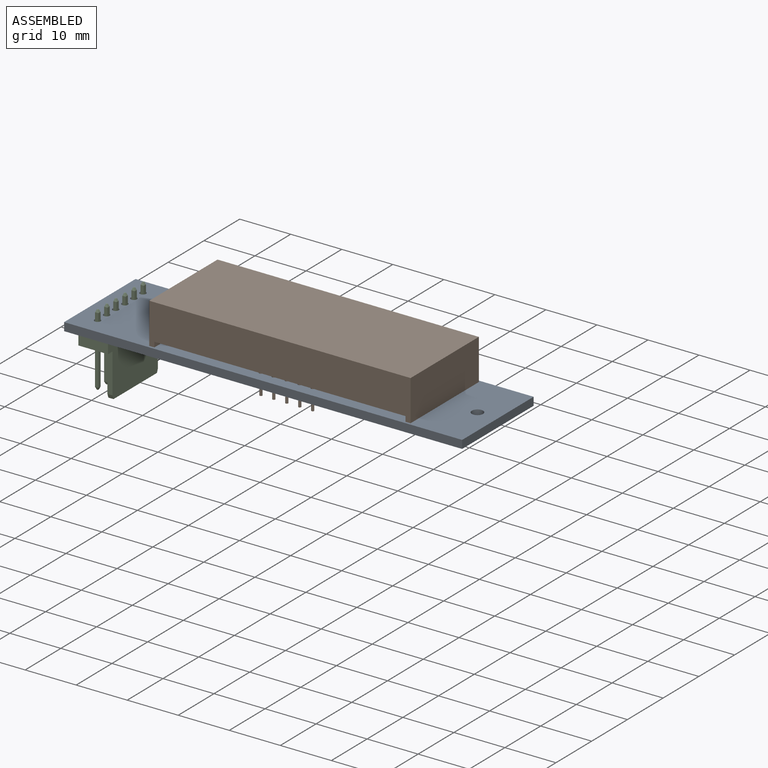
[diagram: assembled view]
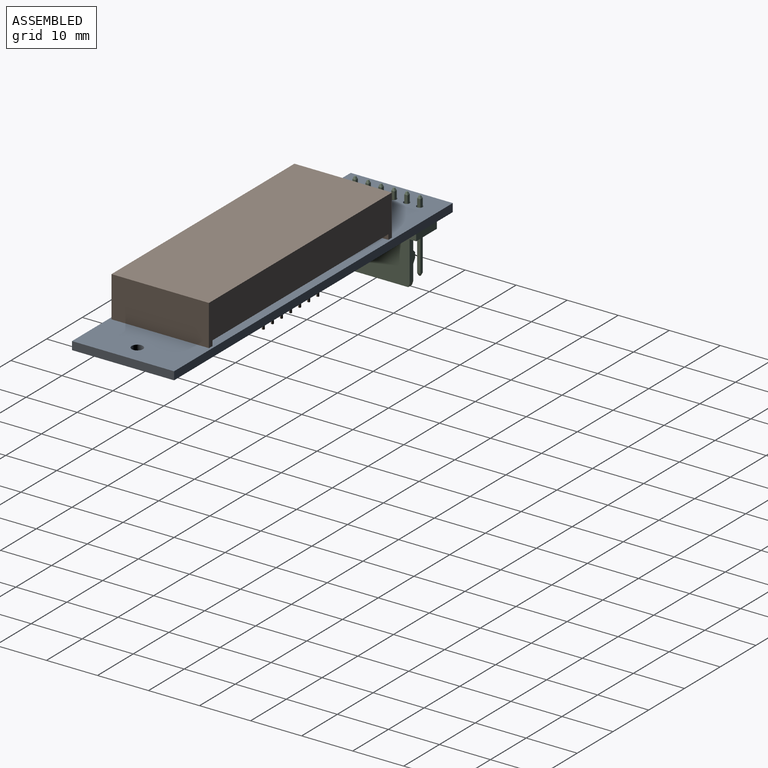
[diagram: assembled view, second angle]
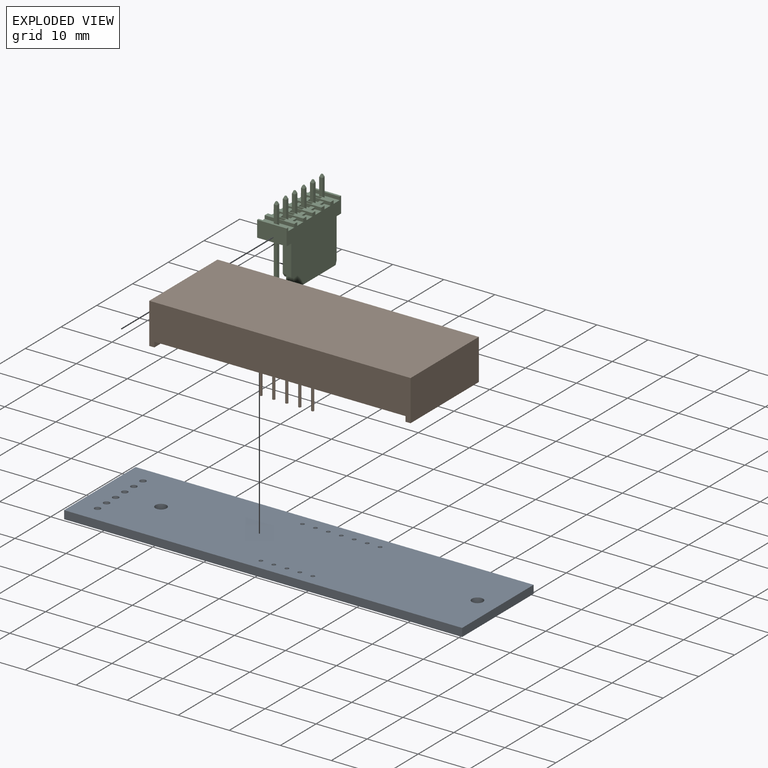
[diagram: exploded view]
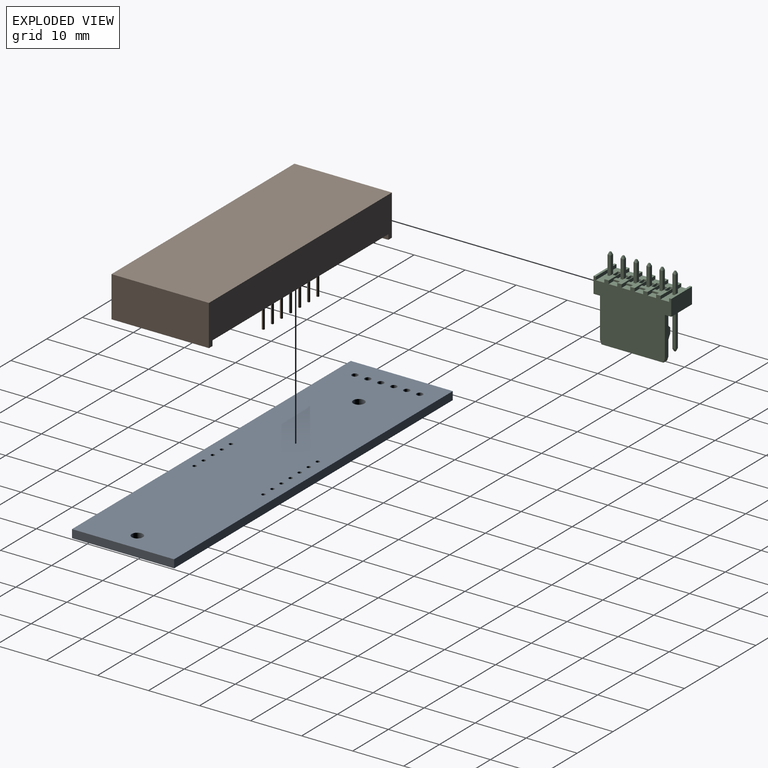
[diagram: exploded view, second angle]
ASSEMBLY  parts=3 mates=3
PART A: 26 faces, bbox 78x20x1.6 mm
  f0: plane 20x1.6mm, normal (-1,0,0), area 32mm2, adj f1,f2,f24,f25
  f1: plane 78x1.6mm, normal (0,1,0), area 124.8mm2, adj f0,f3,f24,f25
  f2: plane 78x1.6mm, normal (0,-1,0), area 124.8mm2, adj f0,f3,f24,f25
  f3: plane 20x1.6mm, normal (1,0,0), area 32mm2, adj f1,f2,f24,f25
  f4: cylinder r=0.38mm len=1.6mm, axis (0,0,1), area 3.8mm2, adj f24,f25
  f5: cylinder r=0.38mm len=1.6mm, axis (0,0,1), area 3.8mm2, adj f24,f25
  f6: cylinder r=0.38mm len=1.6mm, axis (0,0,1), area 3.8mm2, adj f24,f25
  f7: cylinder r=0.38mm len=1.6mm, axis (0,0,1), area 3.8mm2, adj f24,f25
  f8: cylinder r=0.38mm len=1.6mm, axis (0,0,1), area 3.8mm2, adj f24,f25
  f9: cylinder r=0.38mm len=1.6mm, axis (0,0,1), area 3.8mm2, adj f24,f25
  f10: cylinder r=0.38mm len=1.6mm, axis (0,0,1), area 3.8mm2, adj f24,f25
  f11: cylinder r=0.38mm len=1.6mm, axis (0,0,1), area 3.8mm2, adj f24,f25
  f12: cylinder r=0.38mm len=1.6mm, axis (0,0,1), area 3.8mm2, adj f24,f25
  f13: cylinder r=1.1mm len=2.2mm, axis (0,0,1), area 11.1mm2, adj f24,f25
  f14: cylinder r=0.6mm len=1.6mm, axis (0,0,1), area 6mm2, adj f24,f25
  f15: cylinder r=0.6mm len=1.6mm, axis (0,0,1), area 6mm2, adj f24,f25
  f16: cylinder r=0.6mm len=1.6mm, axis (0,0,1), area 6mm2, adj f24,f25
  f17: cylinder r=0.6mm len=1.6mm, axis (0,0,1), area 6mm2, adj f24,f25
  f18: cylinder r=0.6mm len=1.6mm, axis (0,0,1), area 6mm2, adj f24,f25
  f19: cylinder r=0.6mm len=1.6mm, axis (0,0,1), area 6mm2, adj f24,f25
  f20: cylinder r=0.38mm len=1.6mm, axis (0,0,1), area 3.8mm2, adj f24,f25
  f21: cylinder r=0.38mm len=1.6mm, axis (0,0,1), area 3.8mm2, adj f24,f25
  f22: cylinder r=1.1mm len=2.2mm, axis (0,0,1), area 11.1mm2, adj f24,f25
  f23: cylinder r=0.38mm len=1.6mm, axis (0,0,1), area 3.8mm2, adj f24,f25
  f24: plane 78x20mm, normal (0,0,1), area 1540.3mm2, adj f0,f1,f2,f3,f4,f5,f6,f7
  f25: plane 78x20mm, normal (0,0,-1), area 1540.3mm2, adj f0,f1,f2,f3,f4,f5,f6,f7
PART B: 34 faces, bbox 51.2x19.1x12 mm
  f0: cylinder r=0.25mm len=5mm, axis (0,0,1), area 7.9mm2, adj f1,f33
  f1: plane 49.2x19.1mm, normal (0,0,1), area 937.4mm2, adj f0,f2,f5,f7,f9,f11,f13,f15
  f2: cylinder r=0.25mm len=5mm, axis (0,0,1), area 7.9mm2, adj f1,f3
  f3: plane 0.5x0.5mm, normal (0,0,1), area 0.2mm2, adj f2
  f4: plane 0.5x0.5mm, normal (0,0,1), area 0.2mm2, adj f5
  f5: cylinder r=0.25mm len=5mm, axis (0,0,1), area 7.9mm2, adj f1,f4
  f6: plane 0.5x0.5mm, normal (0,0,1), area 0.2mm2, adj f7
  f7: cylinder r=0.25mm len=5mm, axis (0,0,1), area 7.9mm2, adj f1,f6
  f8: plane 19.1x1mm, normal (0,0,1), area 19.1mm2, adj f9,f13,f14,f15
  f9: plane 19.1x1mm, normal (-1,0,0), area 19.1mm2, adj f1,f8,f13,f15
  f10: plane 19.1x1mm, normal (0,0,1), area 19.1mm2, adj f11,f13,f15,f16
  f11: plane 19.1x1mm, normal (1,0,0), area 19.1mm2, adj f1,f10,f13,f15
  f12: plane 51.2x19.1mm, normal (0,0,-1), area 977.9mm2, adj f13,f14,f15,f16
  f13: plane 51.2x8mm, normal (0,1,0), area 360.4mm2, adj f1,f8,f9,f10,f11,f12,f14,f16
  f14: plane 19.1x8mm, normal (1,0,0), area 152.8mm2, adj f8,f12,f13,f15
  f15: plane 51.2x8mm, normal (0,-1,0), area 360.4mm2, adj f1,f8,f9,f10,f11,f12,f14,f16
  f16: plane 19.1x8mm, normal (-1,0,0), area 152.8mm2, adj f10,f12,f13,f15
  f17: cylinder r=0.25mm len=5mm, axis (0,0,1), area 7.9mm2, adj f1,f18
  f18: plane 0.5x0.5mm, normal (0,0,1), area 0.2mm2, adj f17
  f19: cylinder r=0.25mm len=5mm, axis (0,0,1), area 7.9mm2, adj f1,f20
  f20: plane 0.5x0.5mm, normal (0,0,1), area 0.2mm2, adj f19
  f21: cylinder r=0.25mm len=5mm, axis (0,0,1), area 7.9mm2, adj f1,f22
  f22: plane 0.5x0.5mm, normal (0,0,1), area 0.2mm2, adj f21
  f23: cylinder r=0.25mm len=5mm, axis (0,0,1), area 7.9mm2, adj f1,f24
  f24: plane 0.5x0.5mm, normal (0,0,1), area 0.2mm2, adj f23
  f25: cylinder r=0.25mm len=5mm, axis (0,0,1), area 7.9mm2, adj f1,f26
  f26: plane 0.5x0.5mm, normal (0,0,1), area 0.2mm2, adj f25
  f27: cylinder r=0.25mm len=5mm, axis (0,0,1), area 7.9mm2, adj f1,f28
  f28: plane 0.5x0.5mm, normal (0,0,1), area 0.2mm2, adj f27
  f29: cylinder r=0.25mm len=5mm, axis (0,0,1), area 7.9mm2, adj f1,f30
  f30: plane 0.5x0.5mm, normal (0,0,1), area 0.2mm2, adj f29
  f31: cylinder r=0.25mm len=5mm, axis (0,0,1), area 7.9mm2, adj f1,f32
  f32: plane 0.5x0.5mm, normal (0,0,1), area 0.2mm2, adj f31
  f33: plane 0.5x0.5mm, normal (0,0,1), area 0.2mm2, adj f0
PART C: 201 faces, bbox 15.2x15.3x5.8 mm
  f0: plane 3.7x0.64mm, normal (0,0,1), area 2.4mm2, adj f1,f180,f183,f188
  f1: plane 0.64x0.5mm, normal (0,-0.37,0.93), area 0.2mm2, adj f0,f19,f48,f50
  f2: plane 7x0.64mm, normal (0,0,1), area 4.5mm2, adj f47,f77,f182,f187
  f3: plane 5.8x3.16mm, normal (-1,0,0), area 18.3mm2, adj f4,f61,f69,f77
  f4: plane 15.24x3.16mm, normal (0,0,1), area 41.7mm2, adj f3,f14,f24,f31,f51,f60,f61,f62
  f5: plane 0.64x0.5mm, normal (0,-0.37,-0.93), area 0.2mm2, adj f22,f58,f59,f76
  f6: plane 3.16x1.5mm, normal (1,0,0), area 4.7mm2, adj f8,f64,f77,f191
  f7: plane 3.16x0.61mm, normal (0,0,-1), area 1.9mm2, adj f21,f63,f77,f200
  f8: plane 3.16x0.61mm, normal (0,0,-1), area 1.9mm2, adj f6,f30,f64,f77
  f9: plane 3.16x1.5mm, normal (-1,0,0), area 4.7mm2, adj f65,f77,f196,f197
  f10: plane 0.24x0.24mm, normal (0,1,0), area 0.1mm2, adj f25,f47,f184,f189
  f11: plane 0.64x0.5mm, normal (-0.93,0.37,0), area 0.2mm2, adj f161,f163,f164,f170
  f12: plane 7.79x1.6mm, normal (-1,0,0), area 8.8mm2, adj f27,f40,f69,f77,f80,f81,f82,f83
  f13: plane 3.7x0.64mm, normal (0,0,1), area 2.4mm2, adj f102,f107,f111,f115
  f14: plane 5.8x1.68mm, normal (0,-1,0), area 9.3mm2, adj f4,f53,f57,f60,f69,f70,f72,f76
  f15: plane 0.24x0.24mm, normal (0,-1,0), area 0.1mm2, adj f97,f98,f99,f100
  f16: plane 3.16x0.61mm, normal (0,0,1), area 1.9mm2, adj f21,f63,f77,f200
  f17: plane 1x0.75mm, normal (0.94,0.34,0), area 0.8mm2, adj f69,f78,f79,f84
  f18: plane 3.16x0.61mm, normal (0,0,-1), area 1.9mm2, adj f44,f62,f77,f190
  f19: plane 0.24x0.24mm, normal (0,-1,0), area 0.1mm2, adj f1,f48,f49,f50
  f20: plane 7x0.64mm, normal (1,0,0), area 4.5mm2, adj f52,f56,f75,f77
  f21: plane 3.16x1.5mm, normal (1,0,0), area 4.7mm2, adj f7,f16,f63,f77
  f22: plane 0.64x0.5mm, normal (-0.93,-0.37,0), area 0.2mm2, adj f5,f59,f72,f199
  f23: plane 3.16x0.61mm, normal (0,0,1), area 1.9mm2, adj f66,f77,f193,f195
  f24: plane 5.8x0.64mm, normal (-1,0,0), area 3.2mm2, adj f4,f64,f69,f119,f124,f129,f130,f136
  f25: plane 0.64x0.5mm, normal (-0.93,0.37,0), area 0.2mm2, adj f10,f47,f182,f184
  f26: plane 0.64x0.5mm, normal (-0.93,0.37,0), area 0.2mm2, adj f29,f46,f143,f148
  f27: plane 1x0.75mm, normal (-0.94,0.34,0), area 0.8mm2, adj f12,f69,f78,f84
  f28: plane 0.24x0.24mm, normal (0,-1,0), area 0.1mm2, adj f43,f111,f112,f113
  f29: plane 0.64x0.5mm, normal (0,0.37,-0.93), area 0.2mm2, adj f26,f46,f145,f147
  f30: plane 3.16x1.5mm, normal (-1,0,0), area 4.7mm2, adj f8,f64,f77,f191
  f31: plane 5.8x1.68mm, normal (0,-1,0), area 9.3mm2, adj f4,f68,f69,f86,f91,f92,f96,f198
  f32: plane 7x0.64mm, normal (-1,0,0), area 4.5mm2, adj f77,f87,f90,f95
  f33: plane 3.7x0.64mm, normal (0,0,-1), area 2.4mm2, adj f43,f102,f107,f115
  f34: plane 0.64x0.5mm, normal (0.93,-0.37,0), area 0.2mm2, adj f146,f150,f151,f152
  f35: plane 1.68x0.33mm, normal (0,0,1), area 0.6mm2, adj f132,f157,f159,f177
  f36: plane 0.64x0.5mm, normal (-0.93,-0.37,0), area 0.2mm2, adj f162,f173,f174,f176
  f37: plane 7x0.64mm, normal (1,0,0), area 4.5mm2, adj f77,f90,f93,f95
  f38: plane 3.7x0.64mm, normal (0,0,-1), area 2.4mm2, adj f141,f144,f146,f152
  f39: plane 3.7x0.64mm, normal (0,0,1), area 2.4mm2, adj f141,f144,f146,f150
  f40: plane 12.7x1.69mm, normal (0,0,1), area 21.5mm2, adj f12,f79,f80,f81
  f41: plane 7x0.64mm, normal (1,0,0), area 4.5mm2, adj f77,f145,f147,f149
  f42: plane 0.64x0.5mm, normal (0,0.37,-0.93), area 0.2mm2, adj f103,f104,f105,f108
  f43: plane 0.64x0.5mm, normal (0,-0.37,-0.93), area 0.2mm2, adj f28,f33,f112,f113
  f44: plane 3.16x1.5mm, normal (1,0,0), area 4.7mm2, adj f18,f45,f62,f77
  f45: plane 3.16x0.61mm, normal (0,0,1), area 1.9mm2, adj f44,f62,f77,f190
  f46: plane 0.24x0.24mm, normal (0,1,0), area 0.1mm2, adj f26,f29,f147,f148
  f47: plane 0.64x0.5mm, normal (0,0.37,0.93), area 0.2mm2, adj f2,f10,f25,f189
  f48: plane 0.64x0.5mm, normal (0.93,-0.37,0), area 0.2mm2, adj f1,f19,f49,f188
  f49: plane 0.64x0.5mm, normal (0,-0.37,-0.93), area 0.2mm2, adj f19,f48,f50,f186
  f50: plane 0.64x0.5mm, normal (-0.93,-0.37,0), area 0.2mm2, adj f1,f19,f49,f183
  f51: plane 5.8x0.64mm, normal (-1,0,0), area 3.2mm2, adj f4,f66,f69,f121,f126,f133,f134,f138
  f52: plane 7x0.64mm, normal (0,0,1), area 4.5mm2, adj f20,f54,f71,f77
  f53: plane 3.7x0.64mm, normal (0,0,1), area 2.4mm2, adj f14,f57,f72,f199
  f54: plane 0.64x0.5mm, normal (0,0.37,0.93), area 0.2mm2, adj f52,f55,f56,f73
  f55: plane 0.24x0.24mm, normal (0,1,0), area 0.1mm2, adj f54,f56,f73,f74
  f56: plane 0.64x0.5mm, normal (0.93,0.37,0), area 0.2mm2, adj f20,f54,f55,f74
  f57: plane 3.7x0.64mm, normal (1,0,0), area 2.4mm2, adj f14,f53,f58,f76
  f58: plane 0.64x0.5mm, normal (0.93,-0.37,0), area 0.2mm2, adj f5,f57,f59,f199
  f59: plane 0.24x0.24mm, normal (0,-1,0), area 0.1mm2, adj f5,f22,f58,f199
  f60: plane 5.8x0.64mm, normal (1,0,0), area 3.7mm2, adj f4,f14,f66,f69
  f61: plane 5.8x0.43mm, normal (0,-1,0), area 2.5mm2, adj f3,f4,f68,f69
  f62: plane 5.8x0.86mm, normal (0,-1,0), area 4.1mm2, adj f4,f18,f44,f45,f69,f117,f190,f198
  f63: plane 5.8x0.86mm, normal (0,-1,0), area 4.1mm2, adj f4,f7,f16,f21,f69,f122,f139,f200
  f64: plane 5.8x0.86mm, normal (0,-1,0), area 4.1mm2, adj f4,f6,f8,f24,f30,f69,f157,f191
  f65: plane 5.8x0.86mm, normal (0,-1,0), area 4.1mm2, adj f4,f9,f69,f177,f178,f192,f196,f197
  f66: plane 5.8x0.86mm, normal (0,-1,0), area 4.1mm2, adj f4,f23,f51,f60,f69,f193,f194,f195
  f67: plane 5.8x0.43mm, normal (0,-1,0), area 2.5mm2, adj f4,f69,f70,f85
  f68: plane 5.8x0.64mm, normal (1,0,0), area 3.7mm2, adj f4,f31,f61,f69
  f69: plane 15.24x11.7mm, normal (0,0,-1), area 150mm2, adj f3,f12,f14,f17,f24,f27,f31,f51
  f70: plane 5.8x0.64mm, normal (-1,0,0), area 3.7mm2, adj f4,f14,f67,f69
  f71: plane 7x0.64mm, normal (-1,0,0), area 4.5mm2, adj f52,f73,f75,f77
  f72: plane 3.7x0.64mm, normal (-1,0,0), area 2.4mm2, adj f14,f22,f53,f76
  f73: plane 0.64x0.5mm, normal (-0.93,0.37,0), area 0.2mm2, adj f54,f55,f71,f74
  f74: plane 0.64x0.5mm, normal (0,0.37,-0.93), area 0.2mm2, adj f55,f56,f73,f75
  f75: plane 7x0.64mm, normal (0,0,-1), area 4.5mm2, adj f20,f71,f74,f77
  f76: plane 3.7x0.64mm, normal (0,0,-1), area 2.4mm2, adj f5,f14,f57,f72
  f77: plane 15.24x5.8mm, normal (0,1,0), area 61mm2, adj f2,f3,f4,f6,f7,f8,f9,f12
  f78: plane 12.15x1mm, normal (0,1,0), area 12.2mm2, adj f17,f27,f69,f84
  f79: plane 7.79x1.6mm, normal (1,0,0), area 8.8mm2, adj f17,f40,f69,f77,f80,f81,f82,f83
  f80: cylinder r=0.6mm len=12.7mm, axis (-1,0,0), area 12mm2, adj f12,f40,f77,f79
  f81: plane 12.7x0.53mm, normal (0,-0.71,0.71), area 9.5mm2, adj f12,f40,f79,f82
  f82: plane 12.7x1mm, normal (0,0,1), area 12.7mm2, adj f12,f79,f81,f83
  f83: plane 12.7x0.92mm, normal (0,0.5,0.87), area 13.5mm2, adj f12,f79,f82,f84
  f84: plane 12.7x3.8mm, normal (0,0,1), area 48.1mm2, adj f12,f17,f27,f78,f79,f83
  f85: plane 5.8x3.16mm, normal (1,0,0), area 18.3mm2, adj f4,f67,f69,f77
  f86: plane 3.7x0.64mm, normal (-1,0,0), area 2.4mm2, adj f31,f91,f96,f100
  f87: plane 0.64x0.5mm, normal (-0.93,0.37,0), area 0.2mm2, adj f32,f88,f89,f94
  f88: plane 0.24x0.24mm, normal (0,1,0), area 0.1mm2, adj f87,f89,f93,f94
  f89: plane 0.64x0.5mm, normal (0,0.37,-0.93), area 0.2mm2, adj f87,f88,f90,f93
  f90: plane 7x0.64mm, normal (0,0,-1), area 4.5mm2, adj f32,f37,f77,f89
  f91: plane 3.7x0.64mm, normal (0,0,-1), area 2.4mm2, adj f31,f86,f92,f99
  f92: plane 3.7x0.64mm, normal (1,0,0), area 2.4mm2, adj f31,f91,f96,f98
  f93: plane 0.64x0.5mm, normal (0.93,0.37,0), area 0.2mm2, adj f37,f88,f89,f94
  f94: plane 0.64x0.5mm, normal (0,0.37,0.93), area 0.2mm2, adj f87,f88,f93,f95
  f95: plane 7x0.64mm, normal (0,0,1), area 4.5mm2, adj f32,f37,f77,f94
  f96: plane 3.7x0.64mm, normal (0,0,1), area 2.4mm2, adj f31,f86,f92,f97
  f97: plane 0.64x0.5mm, normal (0,-0.37,0.93), area 0.2mm2, adj f15,f96,f98,f100
  f98: plane 0.64x0.5mm, normal (0.93,-0.37,0), area 0.2mm2, adj f15,f92,f97,f99
  f99: plane 0.64x0.5mm, normal (0,-0.37,-0.93), area 0.2mm2, adj f15,f91,f98,f100
  f100: plane 0.64x0.5mm, normal (-0.93,-0.37,0), area 0.2mm2, adj f15,f86,f97,f99
  f101: plane 7x0.64mm, normal (-1,0,0), area 4.5mm2, adj f77,f103,f105,f110
  f102: plane 3.7x0.64mm, normal (-1,0,0), area 2.4mm2, adj f13,f33,f113,f115
  f103: plane 0.64x0.5mm, normal (-0.93,0.37,0), area 0.2mm2, adj f42,f101,f104,f109
  f104: plane 0.24x0.24mm, normal (0,1,0), area 0.1mm2, adj f42,f103,f108,f109
  f105: plane 7x0.64mm, normal (0,0,-1), area 4.5mm2, adj f42,f77,f101,f106
  f106: plane 7x0.64mm, normal (1,0,0), area 4.5mm2, adj f77,f105,f108,f110
  f107: plane 3.7x0.64mm, normal (1,0,0), area 2.4mm2, adj f13,f33,f112,f115
  f108: plane 0.64x0.5mm, normal (0.93,0.37,0), area 0.2mm2, adj f42,f104,f106,f109
  f109: plane 0.64x0.5mm, normal (0,0.37,0.93), area 0.2mm2, adj f103,f104,f108,f110
  f110: plane 7x0.64mm, normal (0,0,1), area 4.5mm2, adj f77,f101,f106,f109
  f111: plane 0.64x0.5mm, normal (0,-0.37,0.93), area 0.2mm2, adj f13,f28,f112,f113
  f112: plane 0.64x0.5mm, normal (0.93,-0.37,0), area 0.2mm2, adj f28,f43,f107,f111
  f113: plane 0.64x0.5mm, normal (-0.93,-0.37,0), area 0.2mm2, adj f28,f43,f102,f111
  f114: plane 1.68x1.3mm, normal (0,-1,0), area 2.2mm2, adj f4,f117,f118,f122
  f115: plane 1.68x1.65mm, normal (0,-1,0), area 2.4mm2, adj f13,f33,f102,f107,f117,f122,f135,f154
  f116: plane 1.68x1.3mm, normal (0,-1,0), area 2.2mm2, adj f69,f117,f122,f123
  f117: plane 5.8x0.64mm, normal (1,0,0), area 3.2mm2, adj f4,f62,f69,f114,f115,f116,f118,f123
  f118: plane 1.68x0.33mm, normal (0,0,1), area 0.6mm2, adj f114,f117,f122,f127
  f119: plane 1.68x0.33mm, normal (0,0,1), area 0.6mm2, adj f24,f129,f139,f140
  f120: plane 1.68x0.33mm, normal (0,0,1), area 0.6mm2, adj f131,f157,f158,f177
  f121: plane 1.68x0.33mm, normal (0,0,1), area 0.6mm2, adj f51,f133,f178,f179
  f122: plane 5.8x0.64mm, normal (-1,0,0), area 3.2mm2, adj f4,f63,f69,f114,f115,f116,f118,f123
  f123: plane 1.68x0.33mm, normal (0,0,-1), area 0.6mm2, adj f116,f117,f122,f128
  f124: plane 1.68x0.33mm, normal (0,0,-1), area 0.6mm2, adj f24,f130,f139,f142
  f125: plane 1.68x0.33mm, normal (0,0,-1), area 0.6mm2, adj f132,f157,f160,f177
  f126: plane 1.68x0.33mm, normal (0,0,-1), area 0.6mm2, adj f51,f134,f178,f181
  f127: plane 1.68x0.78mm, normal (0,-1,0), area 1.3mm2, adj f117,f118,f122,f135
  f128: plane 1.68x0.78mm, normal (0,-1,0), area 1.3mm2, adj f117,f122,f123,f154
  f129: plane 1.68x0.78mm, normal (0,-1,0), area 1.3mm2, adj f24,f119,f136,f139
  f130: plane 1.68x0.78mm, normal (0,-1,0), area 1.3mm2, adj f24,f124,f139,f155
  f131: plane 1.68x0.78mm, normal (0,-1,0), area 1.3mm2, adj f120,f137,f157,f177
  f132: plane 1.68x0.78mm, normal (0,-1,0), area 1.3mm2, adj f35,f125,f157,f177
  f133: plane 1.68x0.78mm, normal (0,-1,0), area 1.3mm2, adj f51,f121,f138,f178
  f134: plane 1.68x0.78mm, normal (0,-1,0), area 1.3mm2, adj f51,f126,f156,f178
  f135: plane 1.68x0.33mm, normal (0,0,-1), area 0.6mm2, adj f115,f117,f122,f127
  f136: plane 1.68x0.33mm, normal (0,0,-1), area 0.6mm2, adj f24,f129,f139,f141
  f137: plane 1.68x0.33mm, normal (0,0,-1), area 0.6mm2, adj f131,f157,f159,f177
  f138: plane 1.68x0.33mm, normal (0,0,-1), area 0.6mm2, adj f51,f133,f178,f180
  f139: plane 5.8x0.64mm, normal (1,0,0), area 3.2mm2, adj f4,f63,f69,f119,f124,f129,f130,f136
  f140: plane 1.68x1.3mm, normal (0,-1,0), area 2.2mm2, adj f4,f24,f119,f139
  f141: plane 1.68x1.65mm, normal (0,-1,0), area 2.4mm2, adj f24,f38,f39,f136,f139,f144,f146,f155
  f142: plane 1.68x1.3mm, normal (0,-1,0), area 2.2mm2, adj f24,f69,f124,f139
  f143: plane 7x0.64mm, normal (-1,0,0), area 4.5mm2, adj f26,f77,f145,f149
  f144: plane 3.7x0.64mm, normal (-1,0,0), area 2.4mm2, adj f38,f39,f141,f153
  f145: plane 7x0.64mm, normal (0,0,-1), area 4.5mm2, adj f29,f41,f77,f143
  f146: plane 3.7x0.64mm, normal (1,0,0), area 2.4mm2, adj f34,f38,f39,f141
  f147: plane 0.64x0.5mm, normal (0.93,0.37,0), area 0.2mm2, adj f29,f41,f46,f148
  f148: plane 0.64x0.5mm, normal (0,0.37,0.93), area 0.2mm2, adj f26,f46,f147,f149
  f149: plane 7x0.64mm, normal (0,0,1), area 4.5mm2, adj f41,f77,f143,f148
  f150: plane 0.64x0.5mm, normal (0,-0.37,0.93), area 0.2mm2, adj f34,f39,f151,f153
  f151: plane 0.24x0.24mm, normal (0,-1,0), area 0.1mm2, adj f34,f150,f152,f153
  f152: plane 0.64x0.5mm, normal (0,-0.37,-0.93), area 0.2mm2, adj f34,f38,f151,f153
  f153: plane 0.64x0.5mm, normal (-0.93,-0.37,0), area 0.2mm2, adj f144,f150,f151,f152
  f154: plane 1.68x0.33mm, normal (0,0,1), area 0.6mm2, adj f115,f117,f122,f128
  f155: plane 1.68x0.33mm, normal (0,0,1), area 0.6mm2, adj f24,f130,f139,f141
  f156: plane 1.68x0.33mm, normal (0,0,1), area 0.6mm2, adj f51,f134,f178,f180
  f157: plane 5.8x0.64mm, normal (1,0,0), area 3.2mm2, adj f4,f35,f64,f69,f120,f125,f131,f132
  f158: plane 1.68x1.3mm, normal (0,-1,0), area 2.2mm2, adj f4,f120,f157,f177
  f159: plane 1.68x1.65mm, normal (0,-1,0), area 2.4mm2, adj f35,f137,f157,f162,f166,f168,f172,f177
  f160: plane 1.68x1.3mm, normal (0,-1,0), area 2.2mm2, adj f69,f125,f157,f177
  f161: plane 7x0.64mm, normal (-1,0,0), area 4.5mm2, adj f11,f77,f165,f171
  f162: plane 3.7x0.64mm, normal (-1,0,0), area 2.4mm2, adj f36,f159,f166,f172
  f163: plane 0.24x0.24mm, normal (0,1,0), area 0.1mm2, adj f11,f164,f169,f170
  f164: plane 0.64x0.5mm, normal (0,0.37,-0.93), area 0.2mm2, adj f11,f163,f165,f169
  f165: plane 7x0.64mm, normal (0,0,-1), area 4.5mm2, adj f77,f161,f164,f167
  f166: plane 3.7x0.64mm, normal (0,0,-1), area 2.4mm2, adj f159,f162,f168,f176
  f167: plane 7x0.64mm, normal (1,0,0), area 4.5mm2, adj f77,f165,f169,f171
  f168: plane 3.7x0.64mm, normal (1,0,0), area 2.4mm2, adj f159,f166,f172,f175
  f169: plane 0.64x0.5mm, normal (0.93,0.37,0), area 0.2mm2, adj f163,f164,f167,f170
  f170: plane 0.64x0.5mm, normal (0,0.37,0.93), area 0.2mm2, adj f11,f163,f169,f171
  f171: plane 7x0.64mm, normal (0,0,1), area 4.5mm2, adj f77,f161,f167,f170
  f172: plane 3.7x0.64mm, normal (0,0,1), area 2.4mm2, adj f159,f162,f168,f173
  f173: plane 0.64x0.5mm, normal (0,-0.37,0.93), area 0.2mm2, adj f36,f172,f174,f175
  f174: plane 0.24x0.24mm, normal (0,-1,0), area 0.1mm2, adj f36,f173,f175,f176
  f175: plane 0.64x0.5mm, normal (0.93,-0.37,0), area 0.2mm2, adj f168,f173,f174,f176
  f176: plane 0.64x0.5mm, normal (0,-0.37,-0.93), area 0.2mm2, adj f36,f166,f174,f175
  f177: plane 5.8x0.64mm, normal (-1,0,0), area 3.2mm2, adj f4,f35,f65,f69,f120,f125,f131,f132
  f178: plane 5.8x0.64mm, normal (1,0,0), area 3.2mm2, adj f4,f65,f69,f121,f126,f133,f134,f138
  f179: plane 1.68x1.3mm, normal (0,-1,0), area 2.2mm2, adj f4,f51,f121,f178
  f180: plane 1.68x1.65mm, normal (0,-1,0), area 2.4mm2, adj f0,f51,f138,f156,f178,f183,f186,f188
  f181: plane 1.68x1.3mm, normal (0,-1,0), area 2.2mm2, adj f51,f69,f126,f178
  f182: plane 7x0.64mm, normal (-1,0,0), area 4.5mm2, adj f2,f25,f77,f185
  f183: plane 3.7x0.64mm, normal (-1,0,0), area 2.4mm2, adj f0,f50,f180,f186
  f184: plane 0.64x0.5mm, normal (0,0.37,-0.93), area 0.2mm2, adj f10,f25,f185,f189
  f185: plane 7x0.64mm, normal (0,0,-1), area 4.5mm2, adj f77,f182,f184,f187
  f186: plane 3.7x0.64mm, normal (0,0,-1), area 2.4mm2, adj f49,f180,f183,f188
  f187: plane 7x0.64mm, normal (1,0,0), area 4.5mm2, adj f2,f77,f185,f189
  f188: plane 3.7x0.64mm, normal (1,0,0), area 2.4mm2, adj f0,f48,f180,f186
  f189: plane 0.64x0.5mm, normal (0.93,0.37,0), area 0.2mm2, adj f10,f47,f184,f187
  f190: plane 3.16x1.5mm, normal (-1,0,0), area 4.7mm2, adj f18,f45,f62,f77
  f191: plane 3.16x0.61mm, normal (0,0,1), area 1.9mm2, adj f6,f30,f64,f77
  f192: plane 3.16x1.5mm, normal (1,0,0), area 4.7mm2, adj f65,f77,f196,f197
  f193: plane 3.16x1.5mm, normal (-1,0,0), area 4.7mm2, adj f23,f66,f77,f194
  f194: plane 3.16x0.61mm, normal (0,0,-1), area 1.9mm2, adj f66,f77,f193,f195
  f195: plane 3.16x1.5mm, normal (1,0,0), area 4.7mm2, adj f23,f66,f77,f194
  f196: plane 3.16x0.61mm, normal (0,0,1), area 1.9mm2, adj f9,f65,f77,f192
  f197: plane 3.16x0.61mm, normal (0,0,-1), area 1.9mm2, adj f9,f65,f77,f192
  f198: plane 5.8x0.64mm, normal (-1,0,0), area 3.7mm2, adj f4,f31,f62,f69
  f199: plane 0.64x0.5mm, normal (0,-0.37,0.93), area 0.2mm2, adj f22,f53,f58,f59
  f200: plane 3.16x1.5mm, normal (-1,0,0), area 4.7mm2, adj f7,f16,f63,f77
PLACE A rot(axis=(1,0,0),180deg) t=(-8.18,-1.72,-54.54)mm fixed
PLACE B rot(axis=(1,0,0),180deg) t=(140.97,85.65,-44.94)mm
PLACE C rot(axis=(-0.58,-0.58,0.58),120deg) t=(87.84,108.32,-56.12)mm
MATE parallel A.f25 <-> B.f10  axis (0,0,1) through (122.95,108.28,-52.94)mm
MATE slider B.f21 <-> A.f6  axis (0,0,-1) through (120.73,100.65,-56.94)mm
MATE parallel A.f14 <-> C.f61  axis (0,0,-1) through (87.84,101.91,-54.54)mm
